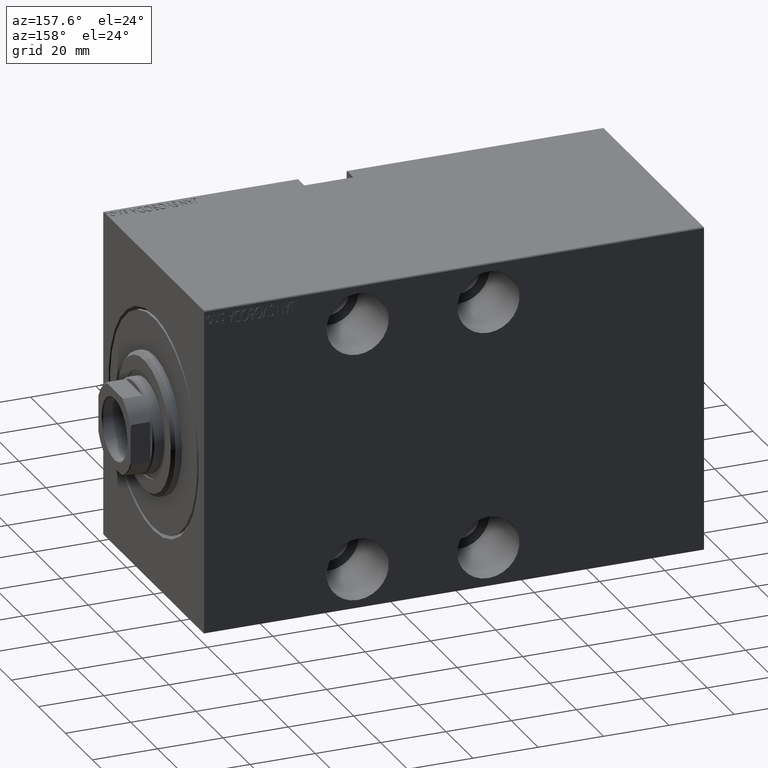
[diagram: clean part render]
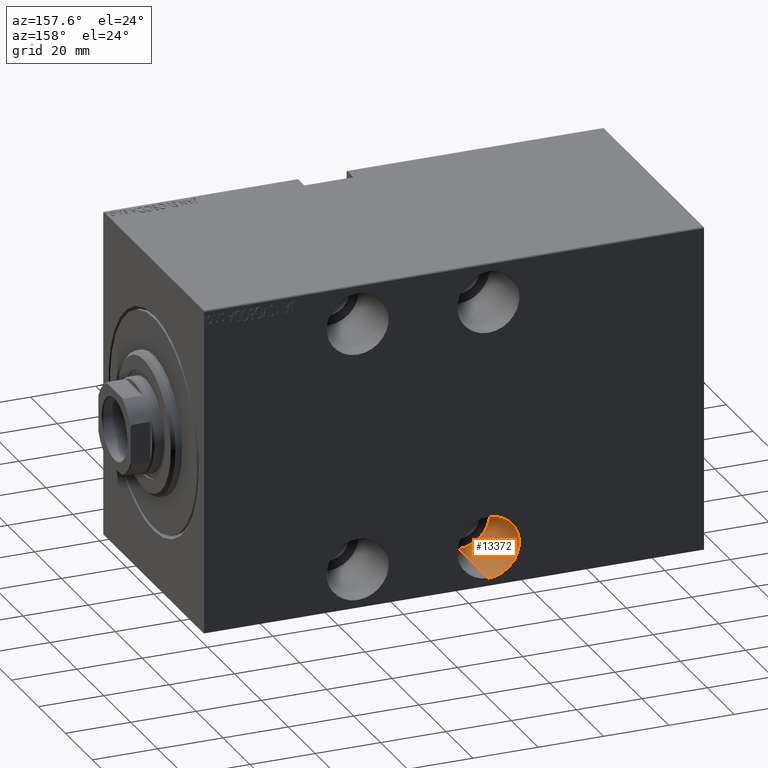
[diagram: same view with one face highlighted and labeled with its STEP entity id]
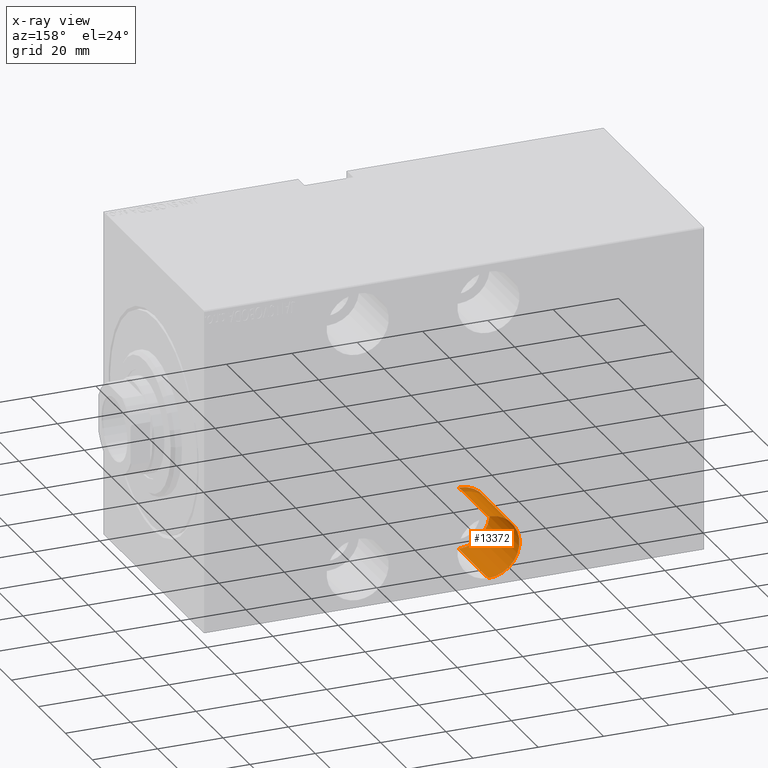
[diagram: x-ray of the same camera — body ghosted, the highlighted face saturated]
A machine part, auxiliary view. The second image highlights one B-rep face of the part: STEP entity #13372.
The next image is the same camera in x-ray: the body ghosted, the highlighted face saturated — about 3% of this face is hidden behind the body in this view.
In plain terms, the highlighted cylindrical surface (edge-blend (fillet) strip) has radius 9.5 mm, axis along (-0, 1, 0).
Its self-contained STEP definition (entity closure, byte-faithful):
#1251 = CARTESIAN_POINT ( 'NONE',  ( 87.00000000000000000, -15.49999999999999289, -47.49999999999998579 ) ) ;
#2280 = LINE ( 'NONE', #43443, #40895 ) ;
#3270 = CIRCLE ( 'NONE', #39312, 9.499999999999994671 ) ;
#3746 = DIRECTION ( 'NONE',  ( 0.000000000000000000, 0.000000000000000000, -1.000000000000000000 ) ) ;
#4335 = VERTEX_POINT ( 'NONE', #1251 ) ;
#4567 = DIRECTION ( 'NONE',  ( -0.000000000000000000, -1.000000000000000000, -0.000000000000000000 ) ) ;
#5042 = CARTESIAN_POINT ( 'NONE',  ( 87.00000000000000000, -37.49999999999999289, -28.49999999999999645 ) ) ;
#5825 = DIRECTION ( 'NONE',  ( -0.000000000000000000, -1.000000000000000000, -0.000000000000000000 ) ) ;
#6994 = VERTEX_POINT ( 'NONE', #5042 ) ;
#9656 = CARTESIAN_POINT ( 'NONE',  ( 87.00000000000000000, -15.49999999999999289, -28.49999999999999645 ) ) ;
#10110 = CARTESIAN_POINT ( 'NONE',  ( 87.00000000000000000, -37.49999999999999289, -47.49999999999998579 ) ) ;
#11018 = FACE_OUTER_BOUND ( 'NONE', #22166, .T. ) ;
#11949 = ORIENTED_EDGE ( 'NONE', *, *, #14243, .F. ) ;
#12080 = EDGE_CURVE ( 'NONE', #17206, #6994, #27256, .T. ) ;
#13372 = ADVANCED_FACE ( 'NONE', ( #11018 ), #24717, .F. ) ;
#13863 = AXIS2_PLACEMENT_3D ( 'NONE', #38428, #4567, #21388 ) ;
#14243 = EDGE_CURVE ( 'NONE', #4335, #17206, #3270, .T. ) ;
#14253 = EDGE_CURVE ( 'NONE', #28612, #6994, #31574, .T. ) ;
#14393 = ORIENTED_EDGE ( 'NONE', *, *, #12080, .F. ) ;
#16724 = AXIS2_PLACEMENT_3D ( 'NONE', #38701, #32274, #35797 ) ;
#17206 = VERTEX_POINT ( 'NONE', #9656 ) ;
#20165 = DIRECTION ( 'NONE',  ( -0.000000000000000000, -1.000000000000000000, -0.000000000000000000 ) ) ;
#20574 = CARTESIAN_POINT ( 'NONE',  ( 87.00000000000000000, -15.49999999999999289, -37.99999999999999289 ) ) ;
#21388 = DIRECTION ( 'NONE',  ( 0.000000000000000000, 0.000000000000000000, -1.000000000000000000 ) ) ;
#22166 = EDGE_LOOP ( 'NONE', ( #14393, #11949, #39798, #34913 ) ) ;
#22293 = VECTOR ( 'NONE', #20165, 1000.000000000000000 ) ;
#24717 = CYLINDRICAL_SURFACE ( 'NONE', #13863, 9.499999999999994671 ) ;
#26926 = EDGE_CURVE ( 'NONE', #4335, #28612, #2280, .T. ) ;
#27256 = LINE ( 'NONE', #34322, #22293 ) ;
#28612 = VERTEX_POINT ( 'NONE', #10110 ) ;
#31574 = CIRCLE ( 'NONE', #16724, 9.499999999999994671 ) ;
#32274 = DIRECTION ( 'NONE',  ( 0.000000000000000000, -1.000000000000000000, 0.000000000000000000 ) ) ;
#34071 = DIRECTION ( 'NONE',  ( 0.000000000000000000, -1.000000000000000000, 0.000000000000000000 ) ) ;
#34322 = CARTESIAN_POINT ( 'NONE',  ( 87.00000000000000000, -15.49999999999999289, -28.49999999999999645 ) ) ;
#34913 = ORIENTED_EDGE ( 'NONE', *, *, #14253, .T. ) ;
#35797 = DIRECTION ( 'NONE',  ( 0.000000000000000000, 0.000000000000000000, -1.000000000000000000 ) ) ;
#38428 = CARTESIAN_POINT ( 'NONE',  ( 87.00000000000000000, -15.49999999999999289, -37.99999999999999289 ) ) ;
#38701 = CARTESIAN_POINT ( 'NONE',  ( 87.00000000000000000, -37.49999999999999289, -37.99999999999999289 ) ) ;
#39312 = AXIS2_PLACEMENT_3D ( 'NONE', #20574, #34071, #3746 ) ;
#39798 = ORIENTED_EDGE ( 'NONE', *, *, #26926, .T. ) ;
#40895 = VECTOR ( 'NONE', #5825, 1000.000000000000000 ) ;
#43443 = CARTESIAN_POINT ( 'NONE',  ( 87.00000000000000000, -15.49999999999999289, -47.49999999999998579 ) ) ;